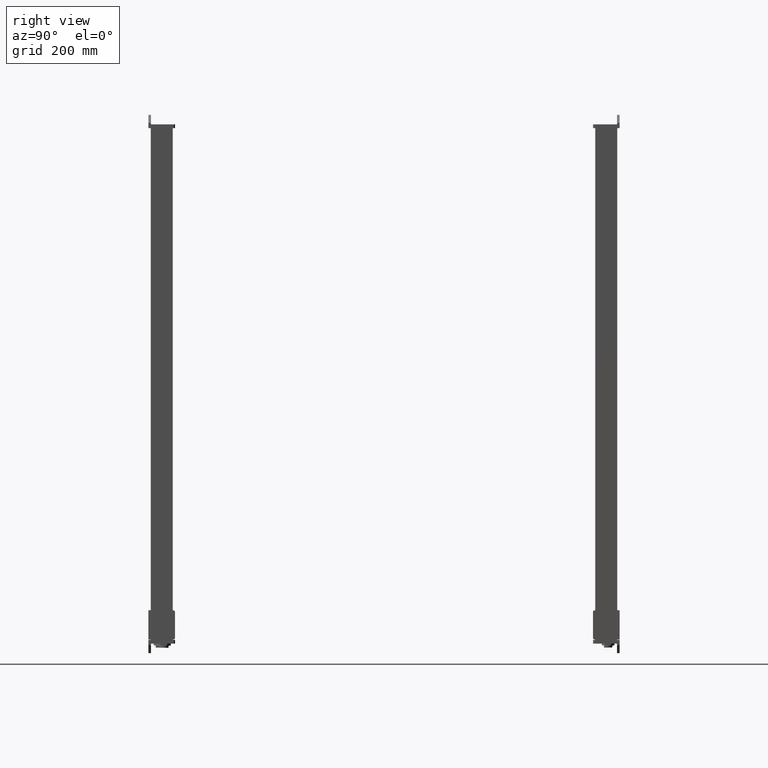
[diagram: clean part render]
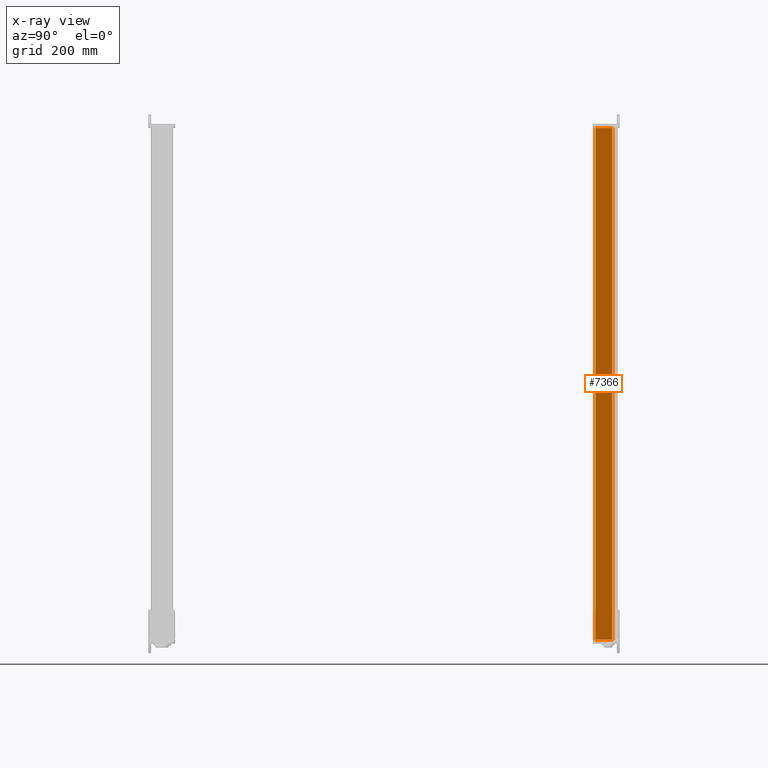
[diagram: x-ray — body ghosted, one internal face saturated and labeled with its STEP entity id]
A machine part, right view, then the same camera in x-ray: the body is ghosted and one INTERNAL B-rep face — a face not visible from any outside direction — is saturated and labeled: STEP entity #7366.
In plain terms, the highlighted planar face has unit normal (1, 0, 0).
Its self-contained STEP definition (entity closure, byte-faithful):
#7314=CARTESIAN_POINT('Vertex',(48.,52.,0.)) ;
#7317=CARTESIAN_POINT('Line Origine',(48.,52.,605.5)) ;
#7321=CARTESIAN_POINT('Vertex',(48.,52.,1211.)) ;
#7336=CARTESIAN_POINT('Axis2P3D Location',(48.,52.,0.)) ;
#7341=CARTESIAN_POINT('Line Origine',(48.,32.,0.)) ;
#7345=CARTESIAN_POINT('Vertex',(48.,12.,0.)) ;
#7348=CARTESIAN_POINT('Line Origine',(48.,12.,605.5)) ;
#7352=CARTESIAN_POINT('Vertex',(48.,12.,1211.)) ;
#7355=CARTESIAN_POINT('Line Origine',(48.,32.,1211.)) ;
#7318=DIRECTION('Vector Direction',(0.,0.,1.)) ;
#7337=DIRECTION('Axis2P3D Direction',(-1.,0.,0.)) ;
#7338=DIRECTION('Axis2P3D XDirection',(0.,-1.,0.)) ;
#7342=DIRECTION('Vector Direction',(0.,-1.,0.)) ;
#7349=DIRECTION('Vector Direction',(0.,0.,1.)) ;
#7356=DIRECTION('Vector Direction',(0.,-1.,0.)) ;
#7339=AXIS2_PLACEMENT_3D('Plane Axis2P3D',#7336,#7337,#7338) ;
#7361=ORIENTED_EDGE('',*,*,#7323,.F.) ;
#7362=ORIENTED_EDGE('',*,*,#7347,.T.) ;
#7363=ORIENTED_EDGE('',*,*,#7354,.T.) ;
#7364=ORIENTED_EDGE('',*,*,#7359,.F.) ;
#7319=VECTOR('Line Direction',#7318,1.) ;
#7343=VECTOR('Line Direction',#7342,1.) ;
#7350=VECTOR('Line Direction',#7349,1.) ;
#7357=VECTOR('Line Direction',#7356,1.) ;
#7366=ADVANCED_FACE('PartBody',(#7365),#7340,.T.) ;
#7323=EDGE_CURVE('',#7315,#7322,#7320,.T.) ;
#7347=EDGE_CURVE('',#7315,#7346,#7344,.T.) ;
#7354=EDGE_CURVE('',#7346,#7353,#7351,.T.) ;
#7359=EDGE_CURVE('',#7322,#7353,#7358,.T.) ;
#7360=EDGE_LOOP('',(#7361,#7362,#7363,#7364)) ;
#7365=FACE_OUTER_BOUND('',#7360,.T.) ;
#7320=LINE('Line',#7317,#7319) ;
#7344=LINE('Line',#7341,#7343) ;
#7351=LINE('Line',#7348,#7350) ;
#7358=LINE('Line',#7355,#7357) ;
#7340=PLANE('Plane',#7339) ;
#7315=VERTEX_POINT('',#7314) ;
#7322=VERTEX_POINT('',#7321) ;
#7346=VERTEX_POINT('',#7345) ;
#7353=VERTEX_POINT('',#7352) ;